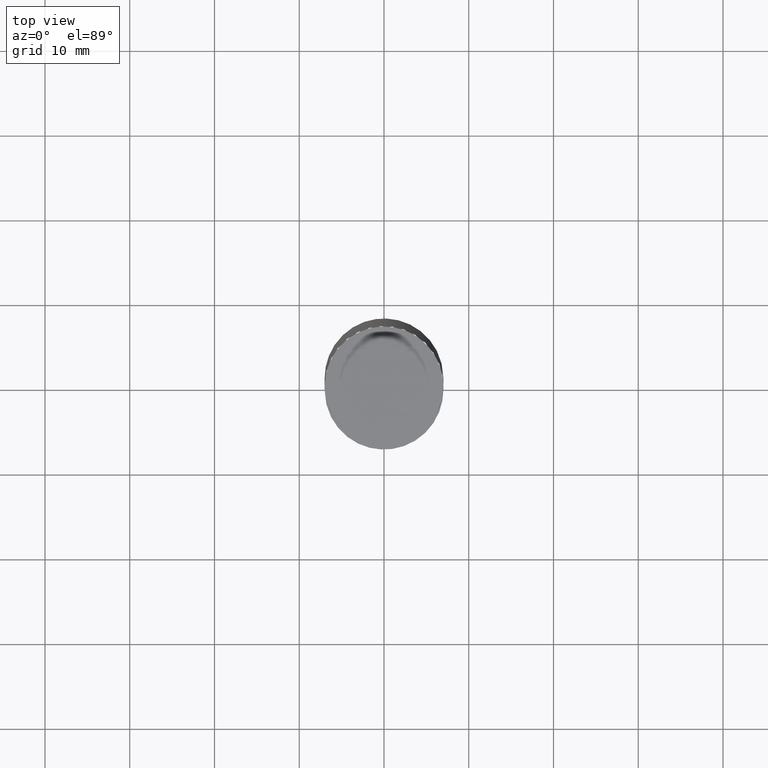
[diagram: clean part render]
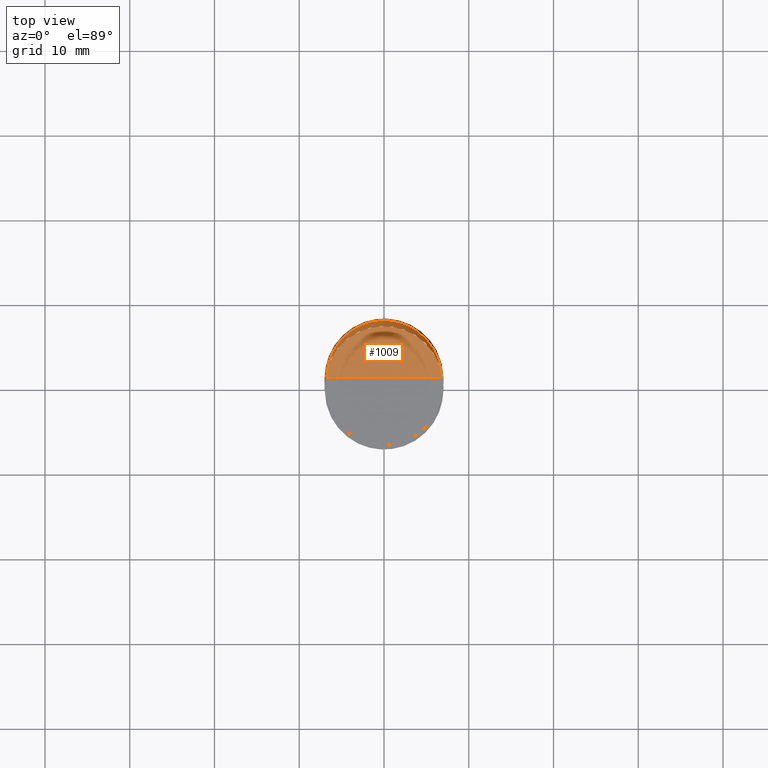
[diagram: same view with one face highlighted and labeled with its STEP entity id]
A machine part, top view. The second image highlights one B-rep face of the part: STEP entity #1009.
In plain terms, the highlighted face is a freeform B-spline surface patch.
Its self-contained STEP definition (entity closure, byte-faithful):
#790=CARTESIAN_POINT('',(6.75,0.0,51.0));
#791=CARTESIAN_POINT('',(6.75,6.75,51.0));
#792=CARTESIAN_POINT('',(0.0,6.75,51.0));
#793=CARTESIAN_POINT('',(-6.75,6.75,51.0));
#794=CARTESIAN_POINT('',(-6.75,0.0,51.0));
#795=CARTESIAN_POINT('',(0.0,0.0,51.0));
#994=(
BOUNDED_SURFACE()
B_SPLINE_SURFACE(1,2,(
(#790,#791,#792,#793,#794),
(#795,#795,#795,#795,#795)
), .UNSPECIFIED.,.F.,.F.,.F.)
B_SPLINE_SURFACE_WITH_KNOTS((2,2),(3,2,3),(
0.0,1.0),(
0.0,0.5,1.0), .UNSPECIFIED.)
GEOMETRIC_REPRESENTATION_ITEM()
RATIONAL_B_SPLINE_SURFACE(((1.0,0.707106781187,1.0,0.707106781187,1.0),
(1.0,0.707106781187,1.0,0.707106781187,1.0)
))
REPRESENTATION_ITEM('')
SURFACE()
);
#995=(
BOUNDED_CURVE()
B_SPLINE_CURVE(2,(#794,#793,#792,#791,#790),.UNSPECIFIED.,.F.,.F.)
B_SPLINE_CURVE_WITH_KNOTS((3,2,3),
(0.0,0.5,1.0),.UNSPECIFIED.)
CURVE()
GEOMETRIC_REPRESENTATION_ITEM()
RATIONAL_B_SPLINE_CURVE((1.0,0.707106781187,1.0,0.707106781187,1.0))
REPRESENTATION_ITEM('')
);
#996=(
BOUNDED_CURVE()
B_SPLINE_CURVE(1,(#790,#795),.UNSPECIFIED.,.F.,.F.)
B_SPLINE_CURVE_WITH_KNOTS((2,2),
(0.0,1.0),.UNSPECIFIED.)
CURVE()
GEOMETRIC_REPRESENTATION_ITEM()
RATIONAL_B_SPLINE_CURVE((1.0,1.0))
REPRESENTATION_ITEM('')
);
#997=(
BOUNDED_CURVE()
B_SPLINE_CURVE(1,(#795,#794),.UNSPECIFIED.,.F.,.F.)
B_SPLINE_CURVE_WITH_KNOTS((2,2),
(0.0,1.0),.UNSPECIFIED.)
CURVE()
GEOMETRIC_REPRESENTATION_ITEM()
RATIONAL_B_SPLINE_CURVE((1.0,1.0))
REPRESENTATION_ITEM('')
);
#998=VERTEX_POINT('',#790);
#999=VERTEX_POINT('',#794);
#1000=VERTEX_POINT('',#795);
#1001=EDGE_CURVE('',#999,#998,#995,.T.);
#1002=EDGE_CURVE('',#998,#1000,#996,.T.);
#1003=EDGE_CURVE('',#1000,#999,#997,.T.);
#1004=ORIENTED_EDGE('',*,*,#1001,.T.);
#1005=ORIENTED_EDGE('',*,*,#1002,.T.);
#1006=ORIENTED_EDGE('',*,*,#1003,.T.);
#1007=EDGE_LOOP('',(#1004,#1005,#1006));
#1008=FACE_OUTER_BOUND('',#1007,.T.);
#1009=ADVANCED_FACE('',(#1008),#994,.T.);